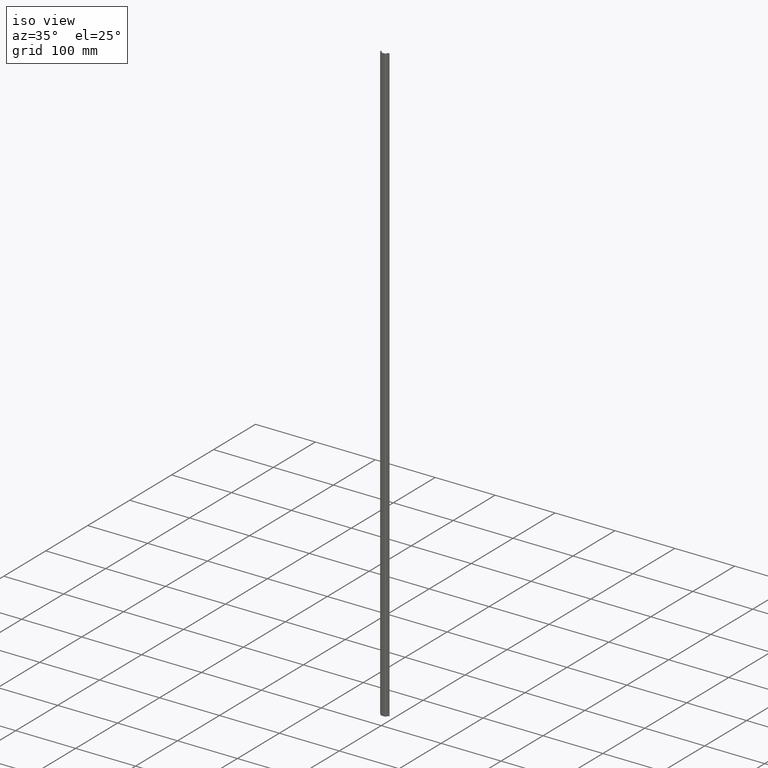
[diagram: clean part render]
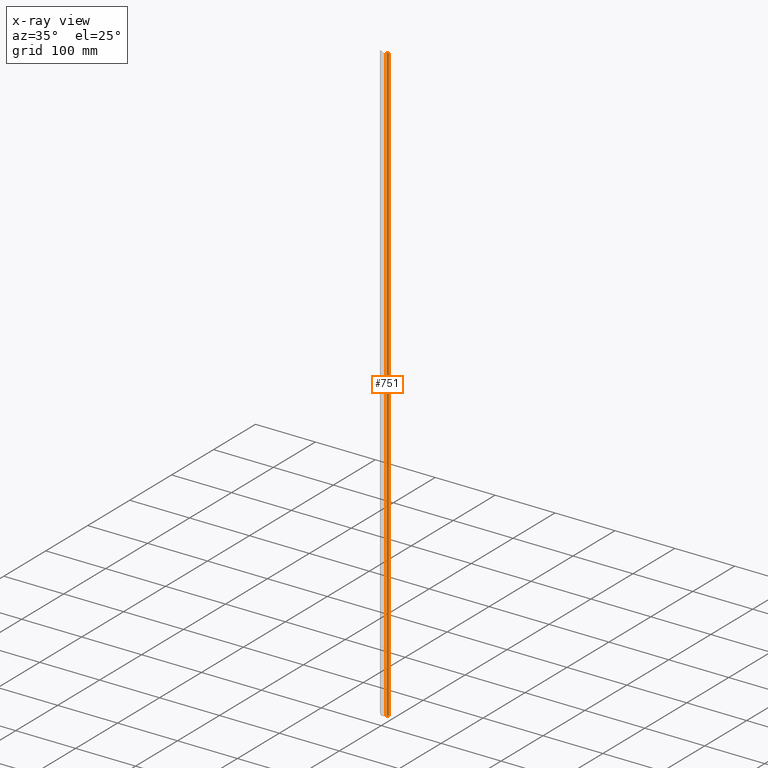
[diagram: x-ray — body ghosted, one internal face saturated and labeled with its STEP entity id]
A machine part, iso view, then the same camera in x-ray: the body is ghosted and one INTERNAL B-rep face — a face not visible from any outside direction — is saturated and labeled: STEP entity #751.
In plain terms, the highlighted cylindrical surface (edge-blend (fillet) strip) has radius 2.2 mm, axis along (-0, -0, -1).
Its self-contained STEP definition (entity closure, byte-faithful):
#28 = VECTOR ( 'NONE', #367, 1000.000000000000000 ) ;
#51 = AXIS2_PLACEMENT_3D ( 'NONE', #470, #458, #461 ) ;
#58 = CIRCLE ( 'NONE', #51, 2.200000000000120100 ) ;
#62 = VECTOR ( 'NONE', #505, 1000.000000000000000 ) ;
#76 = AXIS2_PLACEMENT_3D ( 'NONE', #534, #538, #565 ) ;
#77 = CIRCLE ( 'NONE', #105, 2.200000000000120100 ) ;
#105 = AXIS2_PLACEMENT_3D ( 'NONE', #477, #474, #462 ) ;
#138 = ORIENTED_EDGE ( 'NONE', *, *, #746, .T. ) ;
#139 = ORIENTED_EDGE ( 'NONE', *, *, #732, .F. ) ;
#205 = EDGE_LOOP ( 'NONE', ( #211, #234, #139, #138 ) ) ;
#211 = ORIENTED_EDGE ( 'NONE', *, *, #728, .T. ) ;
#234 = ORIENTED_EDGE ( 'NONE', *, *, #703, .T. ) ;
#258 = VERTEX_POINT ( 'NONE', #303 ) ;
#290 = VERTEX_POINT ( 'NONE', #359 ) ;
#293 = VERTEX_POINT ( 'NONE', #339 ) ;
#303 = CARTESIAN_POINT ( 'NONE',  ( 9.199999999999461100, 5.300000000000021100, 1000.000000000000000 ) ) ;
#305 = VERTEX_POINT ( 'NONE', #337 ) ;
#337 = CARTESIAN_POINT ( 'NONE',  ( 6.999999999999342700, 3.099999999999913500, 0.0000000000000000000 ) ) ;
#339 = CARTESIAN_POINT ( 'NONE',  ( 6.999999999999342700, 3.099999999999913500, 1000.000000000000000 ) ) ;
#359 = CARTESIAN_POINT ( 'NONE',  ( 9.199999999999461100, 5.300000000000021100, 0.0000000000000000000 ) ) ;
#367 = DIRECTION ( 'NONE',  ( 0.0000000000000000000, 0.0000000000000000000, 1.000000000000000000 ) ) ;
#391 = CARTESIAN_POINT ( 'NONE',  ( 6.999999999999356100, 3.099999999999913500, 1000.000000000000000 ) ) ;
#402 = LINE ( 'NONE', #391, #28 ) ;
#458 = DIRECTION ( 'NONE',  ( 0.0000000000000000000, 0.0000000000000000000, 1.000000000000000000 ) ) ;
#461 = DIRECTION ( 'NONE',  ( -1.000000000000000000, 0.0000000000000000000, 0.0000000000000000000 ) ) ;
#462 = DIRECTION ( 'NONE',  ( -1.000000000000000000, 0.0000000000000000000, 0.0000000000000000000 ) ) ;
#470 = CARTESIAN_POINT ( 'NONE',  ( 9.199999999999475300, 3.099999999999913500, 0.0000000000000000000 ) ) ;
#474 = DIRECTION ( 'NONE',  ( 0.0000000000000000000, 0.0000000000000000000, 1.000000000000000000 ) ) ;
#477 = CARTESIAN_POINT ( 'NONE',  ( 9.199999999999475300, 3.099999999999913500, 1000.000000000000000 ) ) ;
#505 = DIRECTION ( 'NONE',  ( -0.0000000000000000000, -0.0000000000000000000, -1.000000000000000000 ) ) ;
#518 = CARTESIAN_POINT ( 'NONE',  ( 9.199999999999445100, 5.300000000000033600, 1000.000000000000000 ) ) ;
#520 = CYLINDRICAL_SURFACE ( 'NONE', #76, 2.200000000000120100 ) ;
#527 = LINE ( 'NONE', #518, #62 ) ;
#530 = FACE_OUTER_BOUND ( 'NONE', #205, .T. ) ;
#534 = CARTESIAN_POINT ( 'NONE',  ( 9.199999999999475300, 3.099999999999913500, 1000.000000000000000 ) ) ;
#538 = DIRECTION ( 'NONE',  ( -0.0000000000000000000, -0.0000000000000000000, -1.000000000000000000 ) ) ;
#565 = DIRECTION ( 'NONE',  ( -1.000000000000000000, 0.0000000000000000000, 0.0000000000000000000 ) ) ;
#703 = EDGE_CURVE ( 'NONE', #305, #293, #402, .T. ) ;
#728 = EDGE_CURVE ( 'NONE', #290, #305, #58, .T. ) ;
#732 = EDGE_CURVE ( 'NONE', #258, #293, #77, .T. ) ;
#746 = EDGE_CURVE ( 'NONE', #258, #290, #527, .T. ) ;
#751 = ADVANCED_FACE ( 'NONE', ( #530 ), #520, .T. ) ;